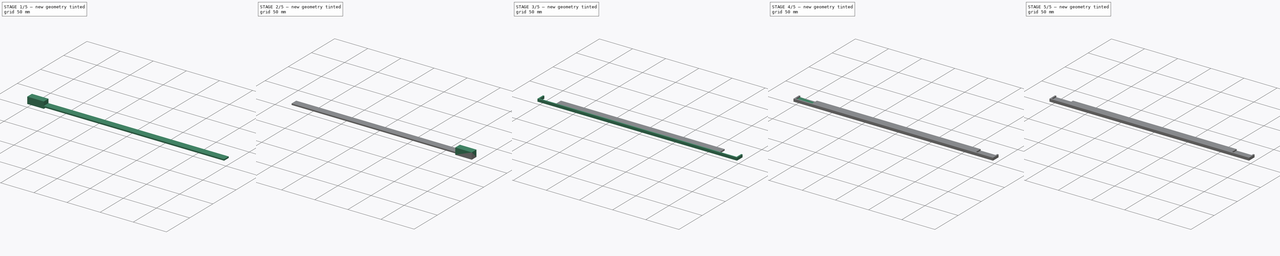
[diagram: build sequence overview — one tinted view per stage of 5, left to right]
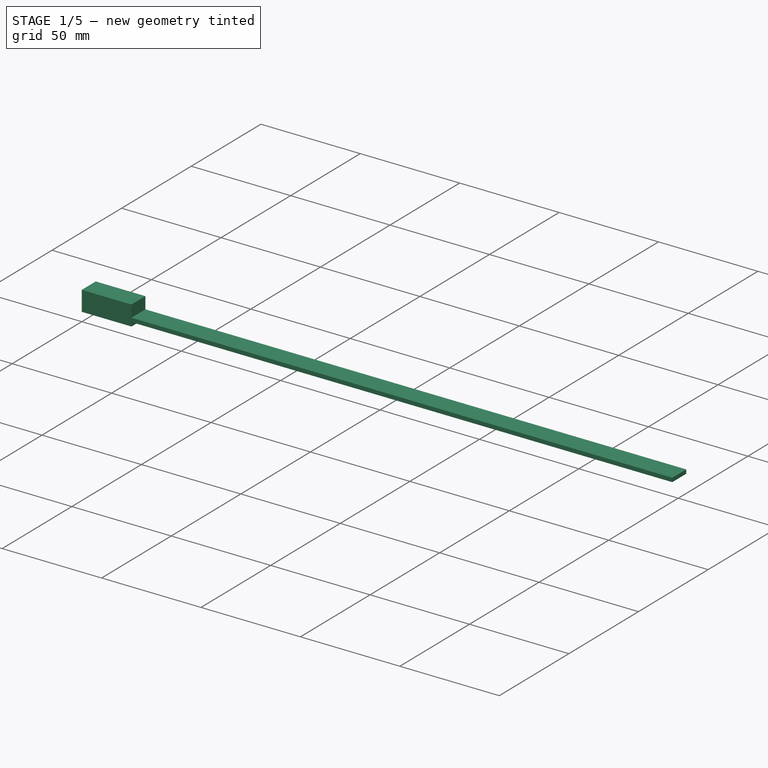
[diagram: stage 1 of 5 — iso view after this stage's code; geometry added in this stage tinted green]
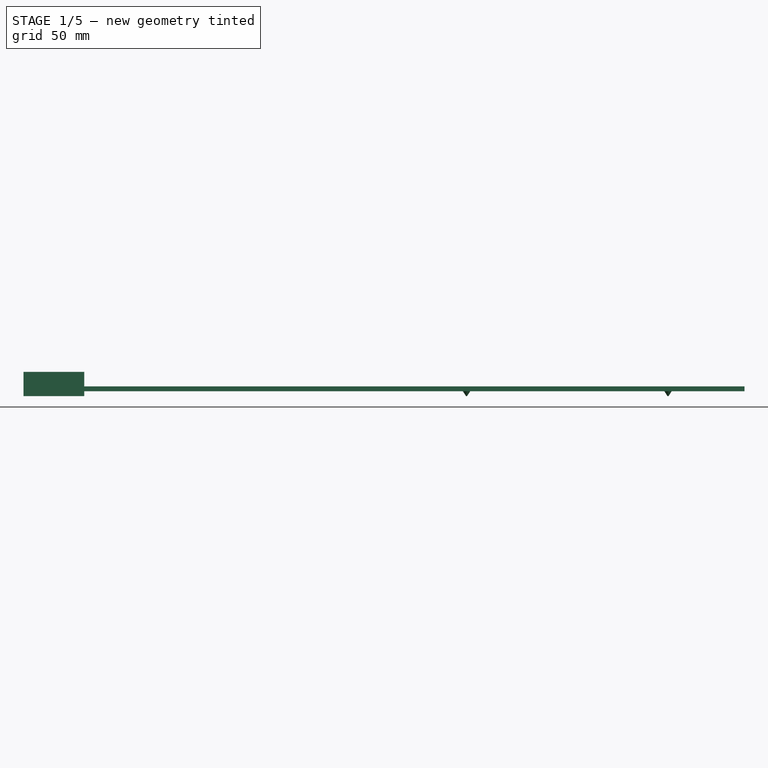
[diagram: stage 1 of 5 — front view after this stage's code; geometry added in this stage tinted green]
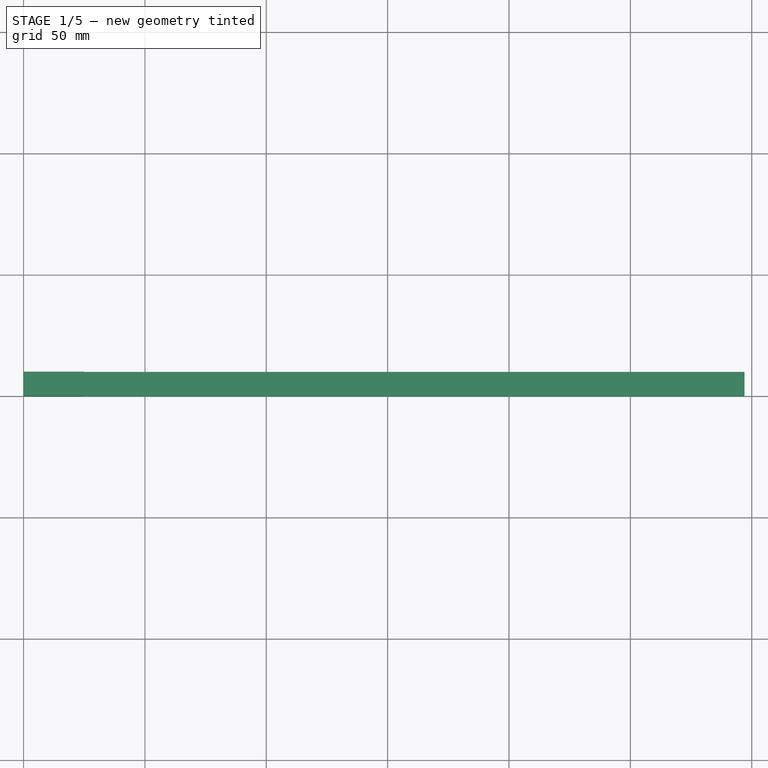
[diagram: stage 1 of 5 — top view after this stage's code; geometry added in this stage tinted green]
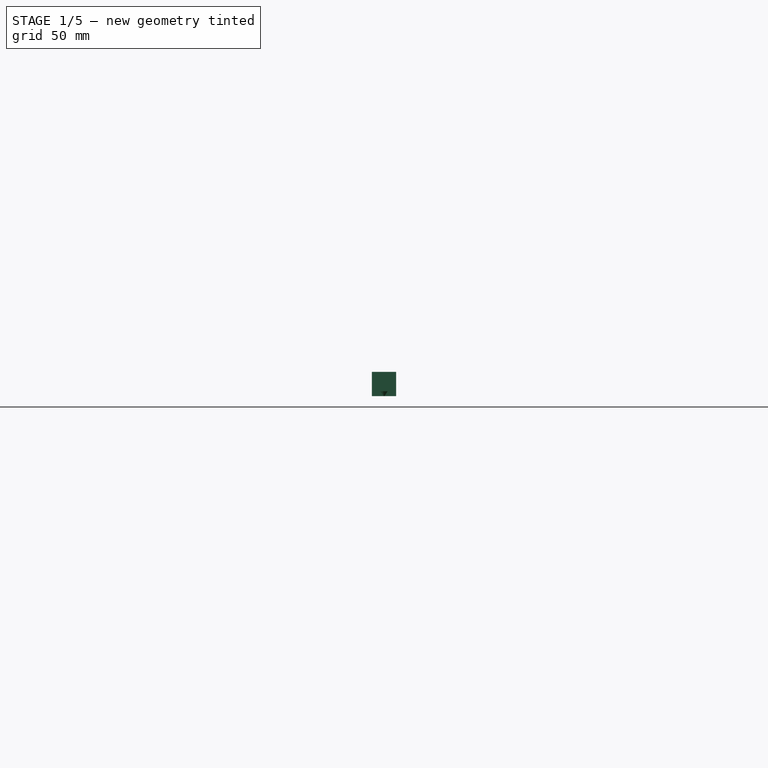
[diagram: stage 1 of 5 — right view after this stage's code; geometry added in this stage tinted green]
FCSTD DOCUMENT  (FreeCAD 0.18R4 (GitTag))
Label: template_vincha
License: CreativeCommons Attribution-ShareAlike
LicenseURL: http://creativecommons.org/licenses/by-sa/4.0/
objects: Part::Cone×8, Part::Cut×7, Part::Box×6, Part::MultiFuse×5, Part::FeaturePython×3, Sketcher::SketchObject×1, Part::Extrusion×1, App::DocumentObjectGroup×1
note: 31 computed .brp shape members not serialized (recipe doc carries the construction recipe); baked Part::Feature solids carry a one-line shape summary decoded from their .brp

FEATURE [Part::Cone] Cone006
  Angle = 360
  AttacherType = Attacher::AttachEngine3D
  Height = 2
  Placement = pos=(182.5,5,0) rot=(0,0,1;0rad)
  Radius1 = 0.2
  Radius2 = 1.5
FEATURE [Part::Cone] Cone007
  Angle = 360
  AttacherType = Attacher::AttachEngine3D
  Height = 2
  Placement = pos=(265.5,5,0) rot=(0,0,1;0rad)
  Radius1 = 0.2
  Radius2 = 1.5
FEATURE [Part::Box] Box001  label="Cube001"
  AttacherType = Attacher::AttachEngine3D
  Height = 2
  Length = 297
  Placement = pos=(0,0,2) rot=(0,0,1;0rad)
  Width = 10
FEATURE [Part::MultiFuse] Fusion
  Shapes = -> [Box001,Cone007]
FEATURE [Part::MultiFuse] Fusion001
  Shapes = -> [Fusion,Cone006]
FEATURE [App::DocumentObjectGroup] GrExplode_Slice  label="Exploded Slice"
  Group = -> [Slice_child0,Slice_child1]
FEATURE [Part::Box] Box004  label="Cube004"
  AttacherType = Attacher::AttachEngine3D
  Height = 10
  Length = 25
  Width = 10
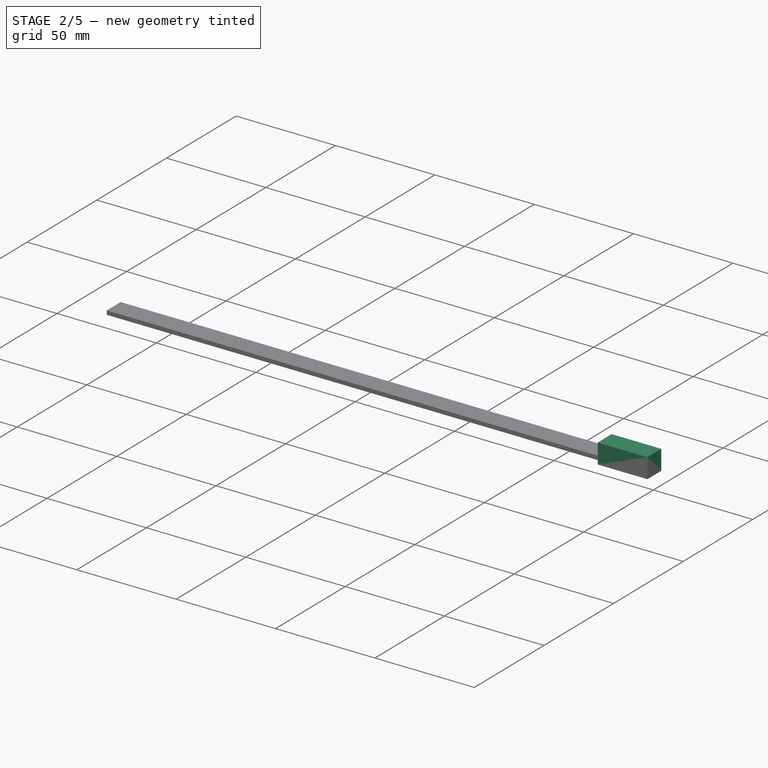
[diagram: stage 2 of 5 — iso view after this stage's code; geometry added in this stage tinted green]
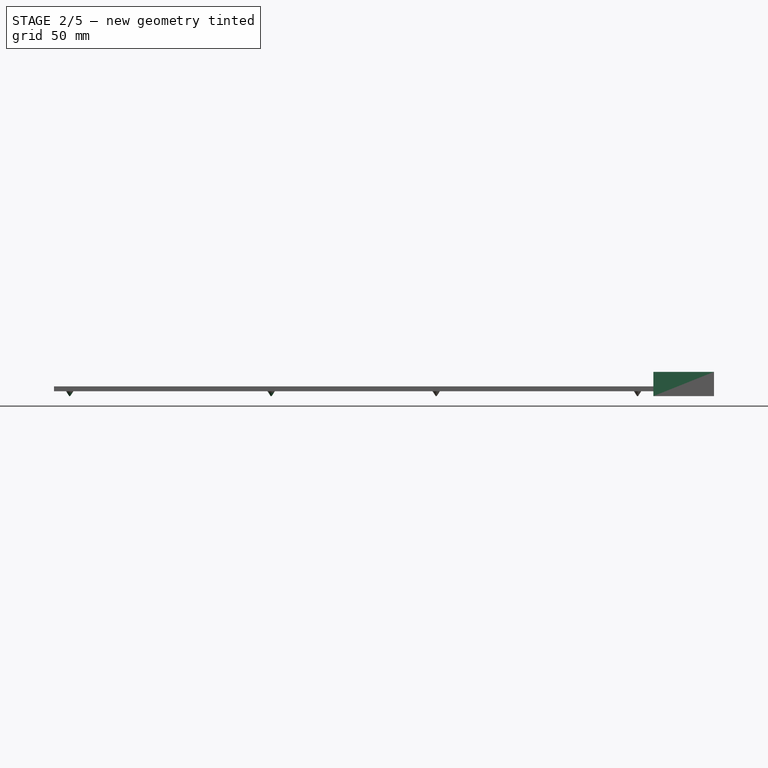
[diagram: stage 2 of 5 — front view after this stage's code; geometry added in this stage tinted green]
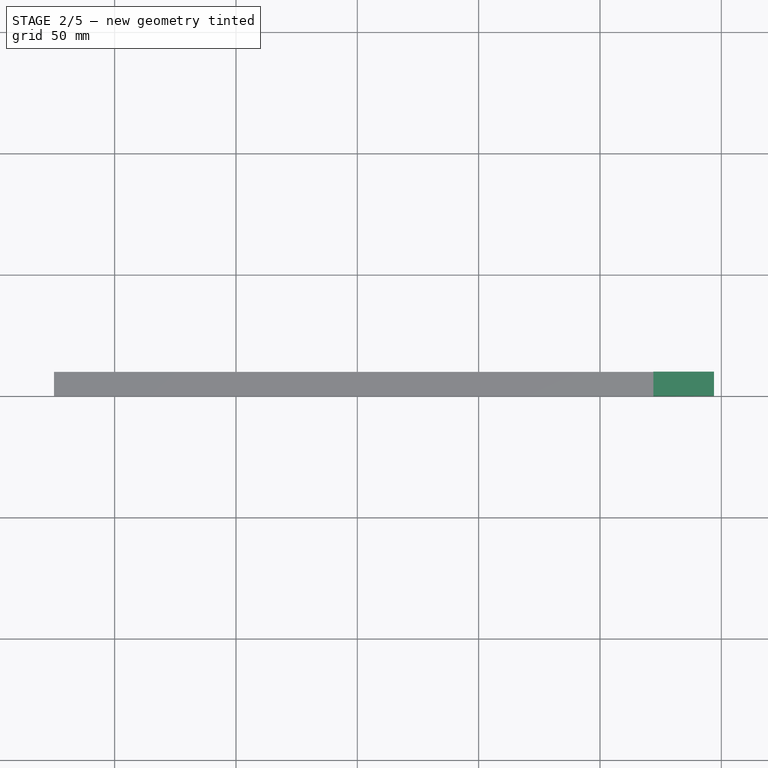
[diagram: stage 2 of 5 — top view after this stage's code; geometry added in this stage tinted green]
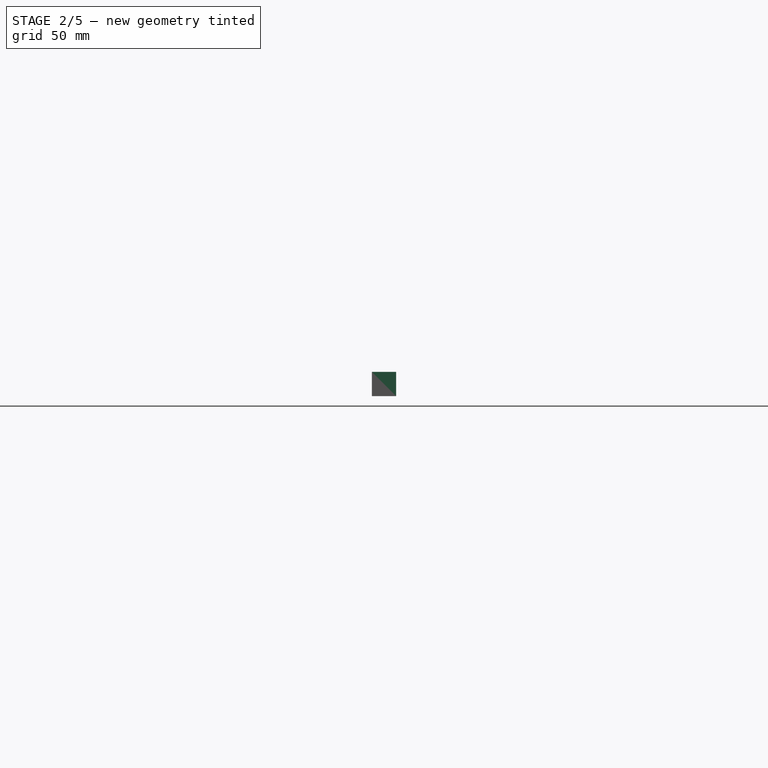
[diagram: stage 2 of 5 — right view after this stage's code; geometry added in this stage tinted green]
FEATURE [Part::Cone] Cone004
  Angle = 360
  AttacherType = Attacher::AttachEngine3D
  Height = 2
  Placement = pos=(31.5,5,0) rot=(0,0,1;0rad)
  Radius1 = 0.2
  Radius2 = 1.5
FEATURE [Part::Cone] Cone005
  Angle = 360
  AttacherType = Attacher::AttachEngine3D
  Height = 2
  Placement = pos=(114.5,5,0) rot=(0,0,1;0rad)
  Radius1 = 0.2
  Radius2 = 1.5
FEATURE [Part::MultiFuse] Fusion002
  Shapes = -> [Fusion001,Cone005]
FEATURE [Part::MultiFuse] Fusion003  label="cortador_largo"
  Shapes = -> [Fusion002,Cone004]
FEATURE [Part::Box] Box005  label="Cube005"
  AttacherType = Attacher::AttachEngine3D
  Height = 10
  Length = 25
  Placement = pos=(272,0,0) rot=(0,0,1;0rad)
  Width = 10
FEATURE [Part::Cut] Cut005
  Base = -> Fusion003
  Tool = -> Box004
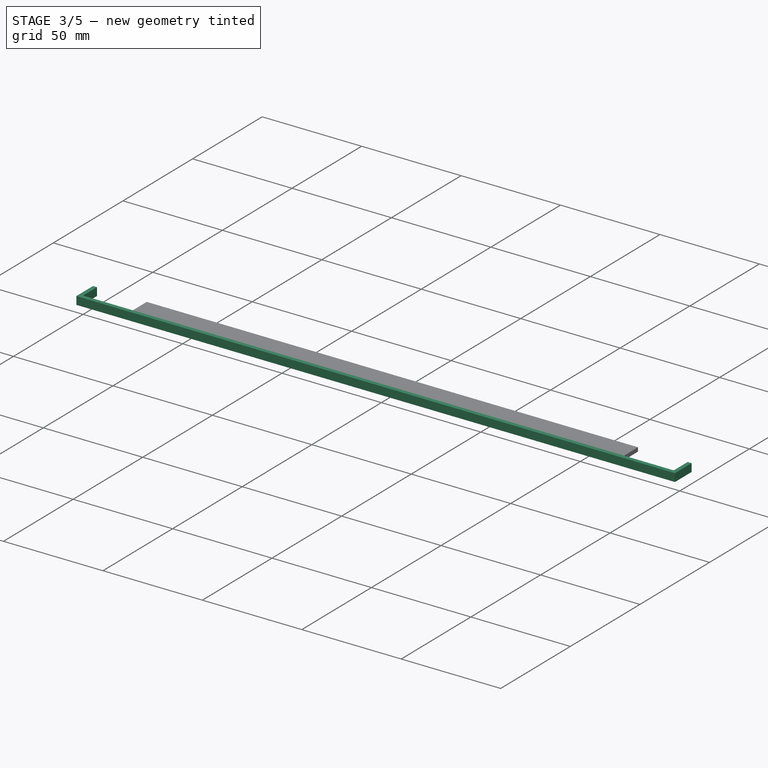
[diagram: stage 3 of 5 — iso view after this stage's code; geometry added in this stage tinted green]
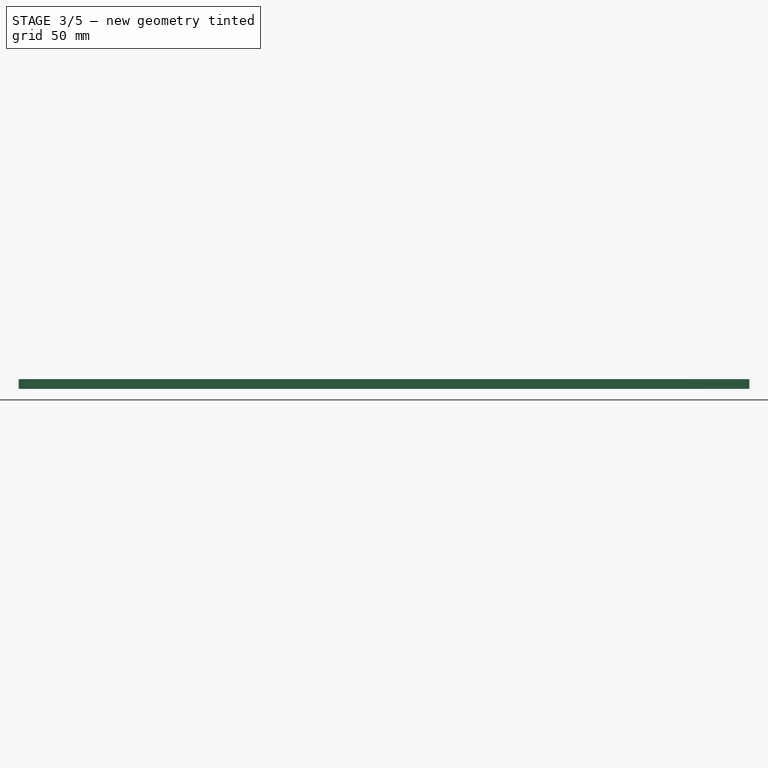
[diagram: stage 3 of 5 — front view after this stage's code; geometry added in this stage tinted green]
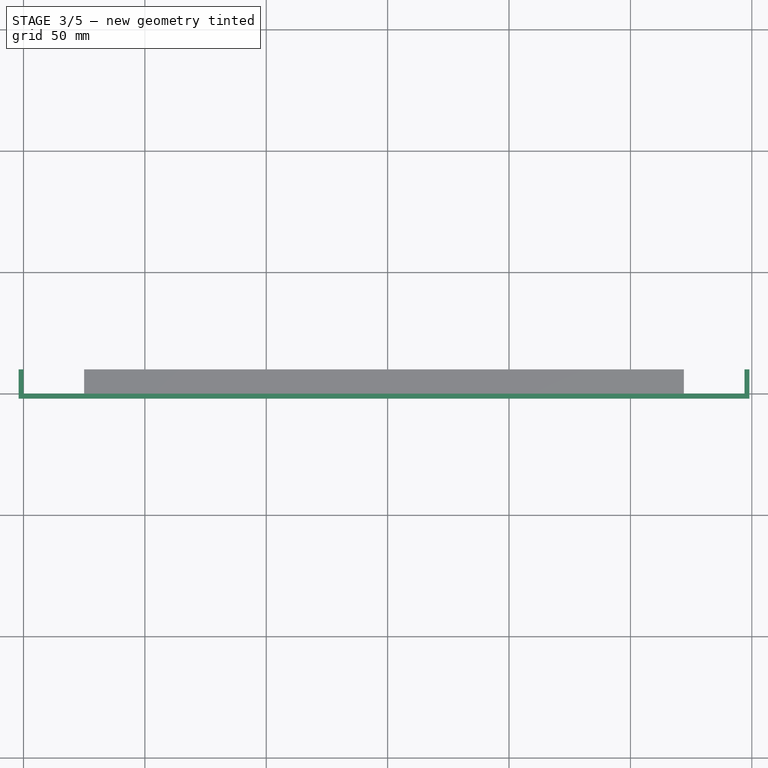
[diagram: stage 3 of 5 — top view after this stage's code; geometry added in this stage tinted green]
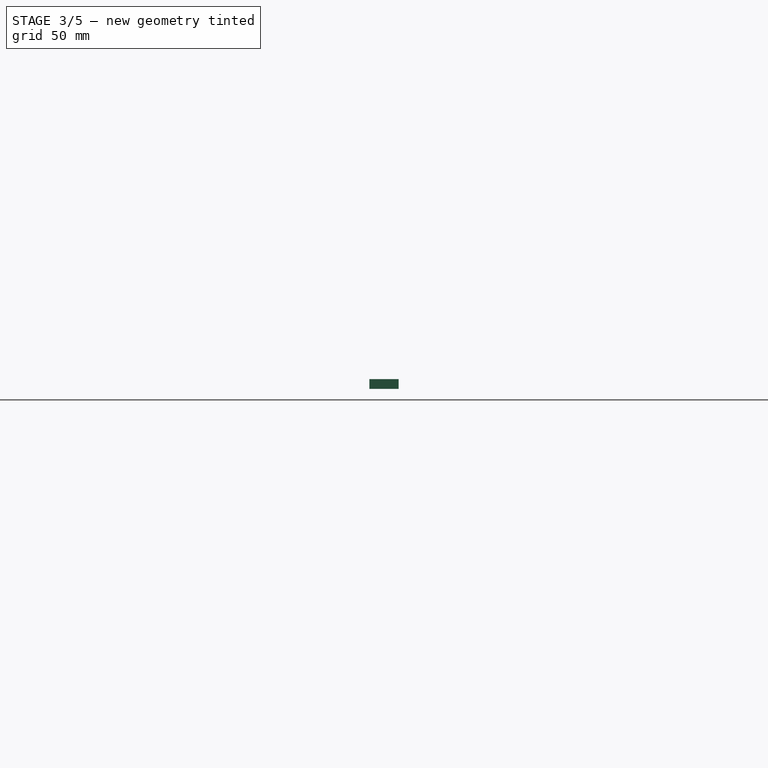
[diagram: stage 3 of 5 — right view after this stage's code; geometry added in this stage tinted green]
FEATURE [Part::Cone] Cone
  Angle = 360
  AttacherType = Attacher::AttachEngine3D
  Height = 2
  Placement = pos=(31.5,5,0) rot=(0,0,1;0rad)
  Radius1 = 0.2
  Radius2 = 1.5
FEATURE [Part::Box] Box002  label="Cube002"
  AttacherType = Attacher::AttachEngine3D
  Height = 4
  Length = 301
  Placement = pos=(-2,-2,0) rot=(0,0,1;0rad)
  Width = 12
FEATURE [Part::Box] Box003  label="Cube003"
  AttacherType = Attacher::AttachEngine3D
  Height = 4
  Length = 297
  Width = 10
FEATURE [Part::Cut] Cut004
  Base = -> Box002
  Tool = -> Box003
FEATURE [Part::Cut] Cut006  label="cortador"
  Base = -> Cut005
  Tool = -> Box005
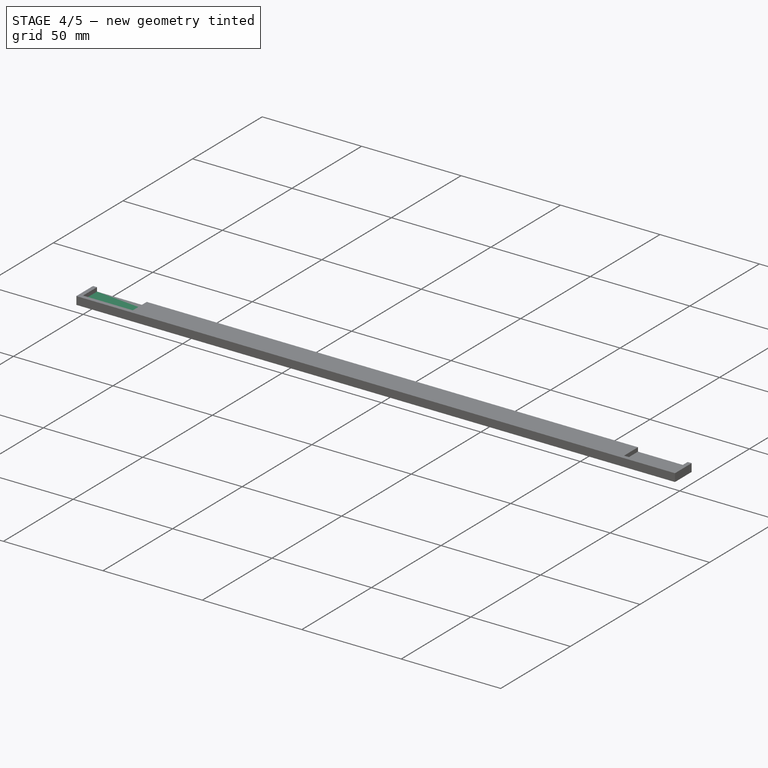
[diagram: stage 4 of 5 — iso view after this stage's code; geometry added in this stage tinted green]
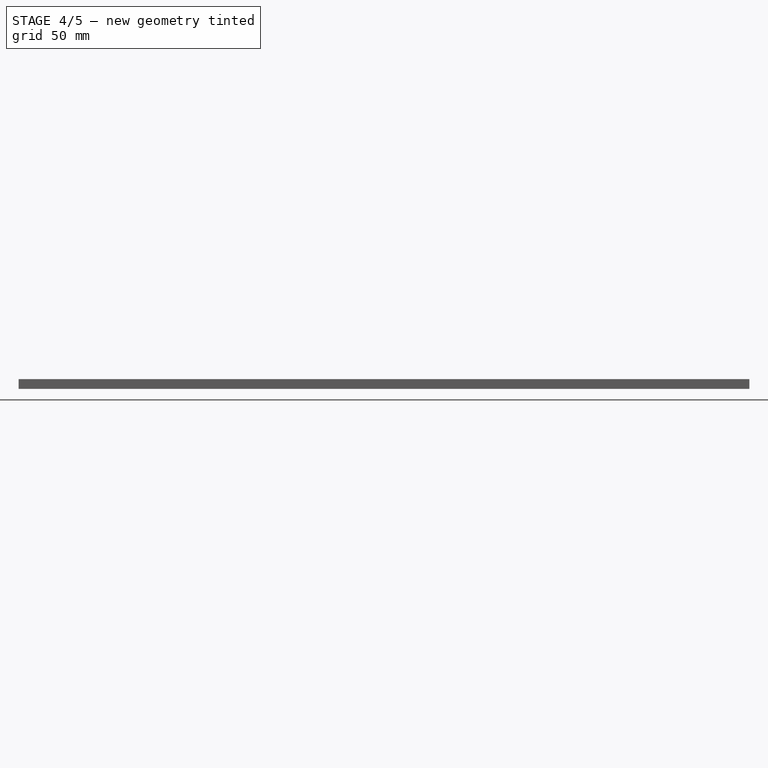
[diagram: stage 4 of 5 — front view after this stage's code; geometry added in this stage tinted green]
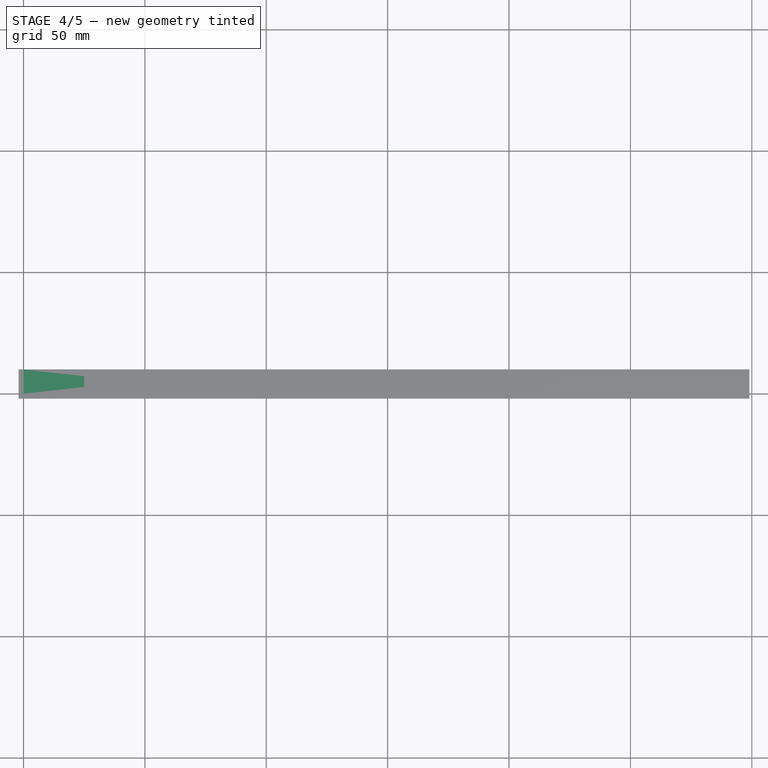
[diagram: stage 4 of 5 — top view after this stage's code; geometry added in this stage tinted green]
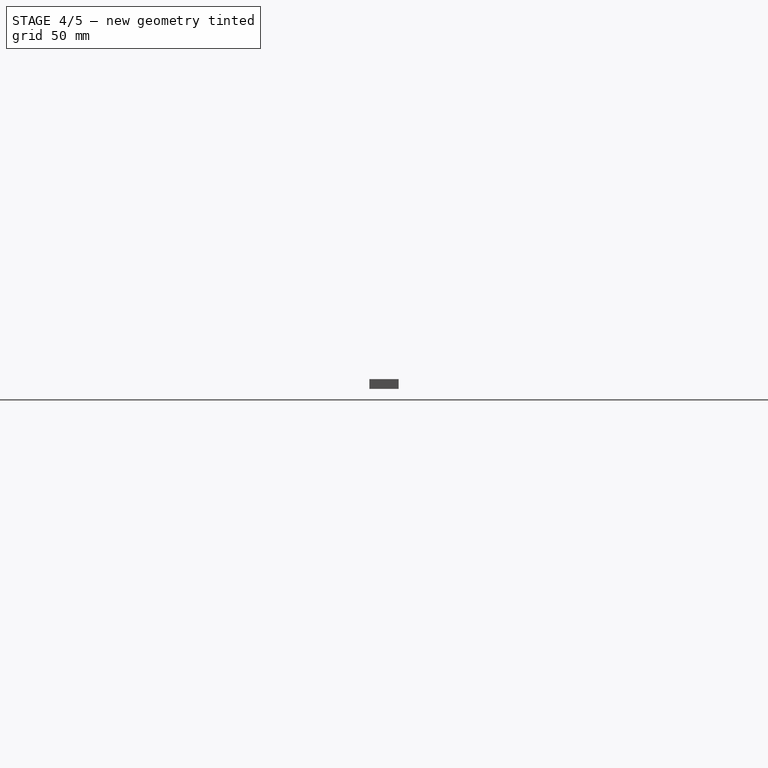
[diagram: stage 4 of 5 — right view after this stage's code; geometry added in this stage tinted green]
FEATURE [Part::Box] Box  label="Cube"
  AttacherType = Attacher::AttachEngine3D
  Height = 2
  Length = 297
  Width = 10
FEATURE [Part::Cone] Cone001
  Angle = 360
  AttacherType = Attacher::AttachEngine3D
  Height = 2
  Placement = pos=(114.5,5,0) rot=(0,0,1;0rad)
  Radius1 = 0.2
  Radius2 = 1.5
FEATURE [Part::Cone] Cone002
  Angle = 360
  AttacherType = Attacher::AttachEngine3D
  Height = 2
  Placement = pos=(182.5,5,0) rot=(0,0,1;0rad)
  Radius1 = 0.2
  Radius2 = 1.5
FEATURE [Part::Cut] Cut
  Base = -> Box
  Tool = -> Cone
FEATURE [Part::Cut] Cut001
  Base = -> Cut
  Tool = -> Cone001
FEATURE [Part::Cut] Cut002
  Base = -> Cut001
  Tool = -> Cone002
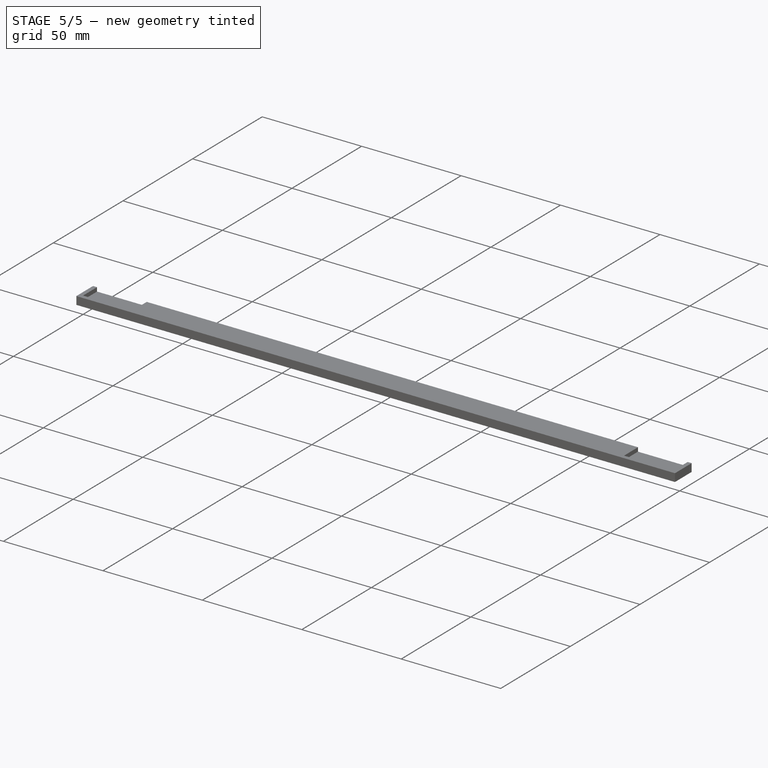
[diagram: stage 5 of 5 — iso view after this stage's code; geometry added in this stage tinted green]
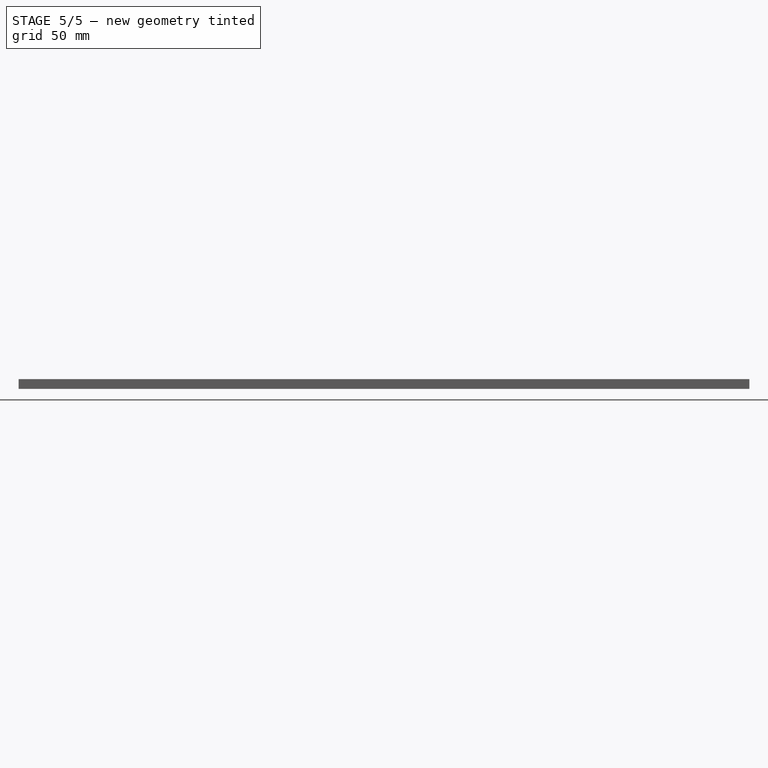
[diagram: stage 5 of 5 — front view after this stage's code; geometry added in this stage tinted green]
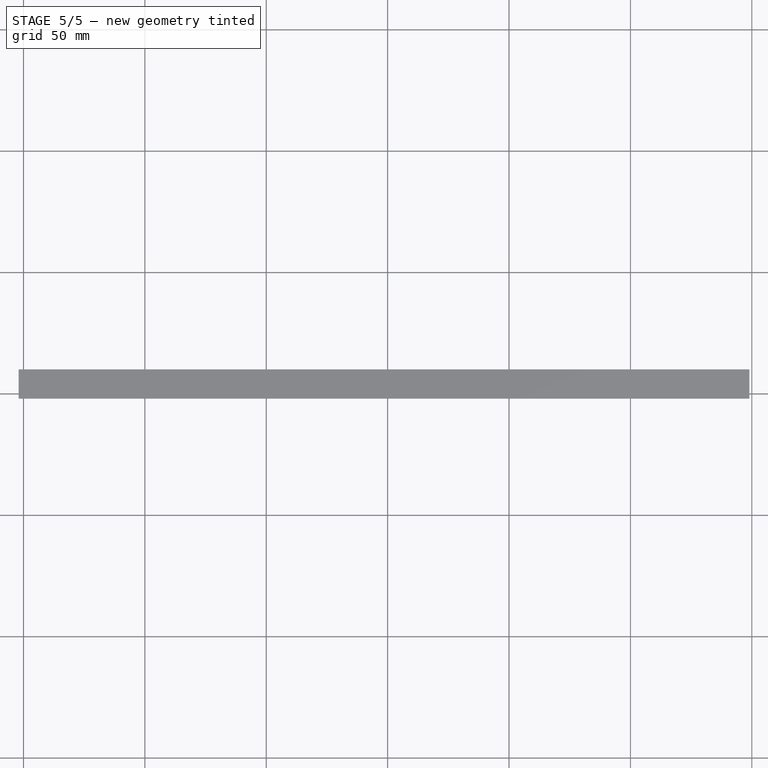
[diagram: stage 5 of 5 — top view after this stage's code; geometry added in this stage tinted green]
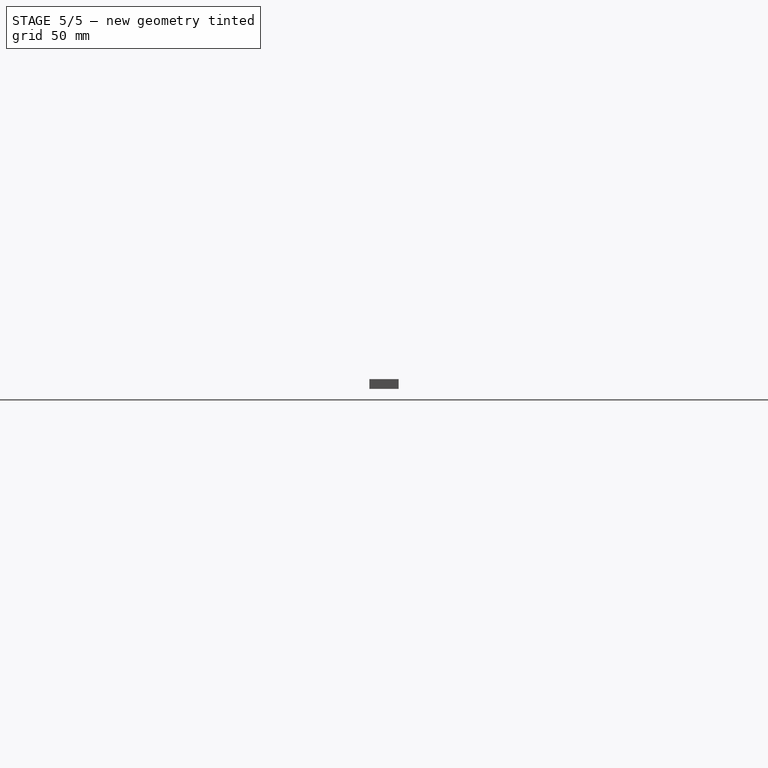
[diagram: stage 5 of 5 — right view after this stage's code; geometry added in this stage tinted green]
FEATURE [Part::Cone] Cone003
  Angle = 360
  AttacherType = Attacher::AttachEngine3D
  Height = 2
  Placement = pos=(265.5,5,0) rot=(0,0,1;0rad)
  Radius1 = 0.2
  Radius2 = 1.5
FEATURE [Part::Cut] Cut003  label="base1"
  Base = -> Cut002
  Tool = -> Cone003
FEATURE [Part::MultiFuse] Fusion004  label="base"
  Shapes = -> [Cut003,Cut004]
FEATURE [Sketcher::SketchObject] Sketch
  MapMode = 5
  Placement = pos=(0,0,2) rot=(0,0,1;0rad)
  Support = -> [Fusion004]
  sketch-geometry (3):
    g0: LineSegment StartX=157.419 StartY=11.8226 StartZ=0 EndX=158.5 EndY=7.5 EndZ=0
    g1: LineSegment StartX=158.5 StartY=7.5 StartZ=0 EndX=138.5 EndY=2.5 EndZ=0
    g2: LineSegment StartX=138.5 StartY=2.5 StartZ=0 EndX=140.869 EndY=-6.97583 EndZ=0
  constraints (8):
    c: Coincident(g0,g1)
    c: Coincident(g1,g2)
    c: DistanceY(g-1,g0) = 7.5
    c: DistanceY(g-1,g1) = 2.5
    c: Angle(g2,g1) = 1.5708
    c: Angle(g0,g1) = 1.5708
    c: DistanceX(g-1,g0) = 158.5
    c: DistanceX(g-1,g1) = 138.5
FEATURE [Part::Extrusion] Extrude
  Base = -> Sketch
  Dir = (0,0,1)
  DirMode = 2
  FaceMakerClass = Part::FaceMakerBullseye
  LengthFwd = 10
  LengthRev = 0
  Solid = false
  Symmetric = true
FEATURE [Part::FeaturePython] Slice  # WARN: FeaturePython — macro-defined, semantics opaque (R4)
  Base = -> Fusion004
  Mode = 1
  Tolerance = 0
  Tools = -> [Extrude]
FEATURE [Part::FeaturePython] Slice_child0  label="Slice.0"  # WARN: FeaturePython — macro-defined, semantics opaque (R4)
  Base = -> Slice
  FilterType = 1
  Invert = false
  OverrideMaxVal = 0
  WindowFrom = 80
  WindowTo = 100
  items = 0
FEATURE [Part::FeaturePython] Slice_child1  label="Slice.1"  # WARN: FeaturePython — macro-defined, semantics opaque (R4)
  Base = -> Slice
  FilterType = 1
  Invert = false
  OverrideMaxVal = 0
  WindowFrom = 80
  WindowTo = 100
  items = 1
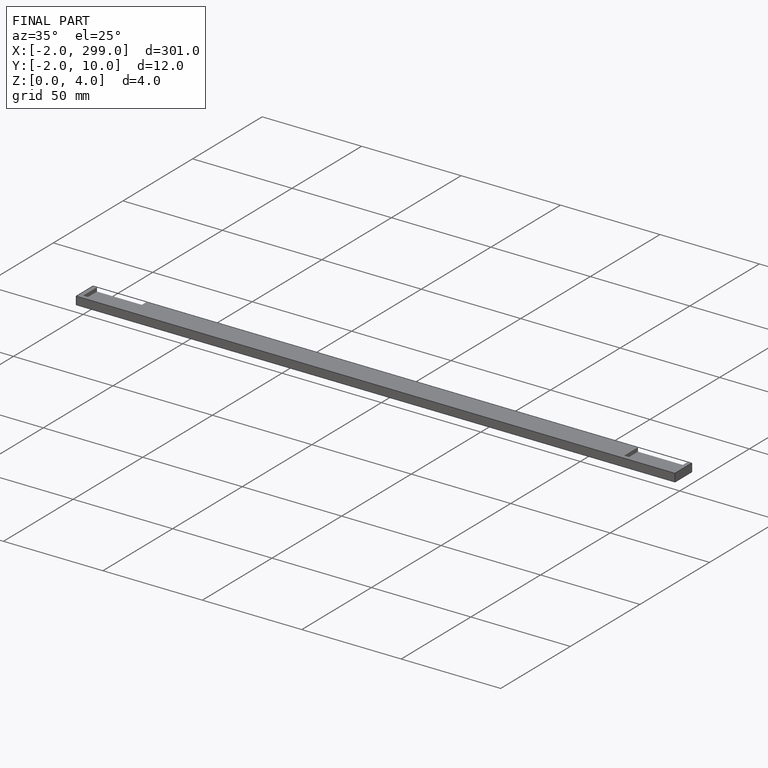
[diagram: finished part — iso view with bounding-box wireframe]
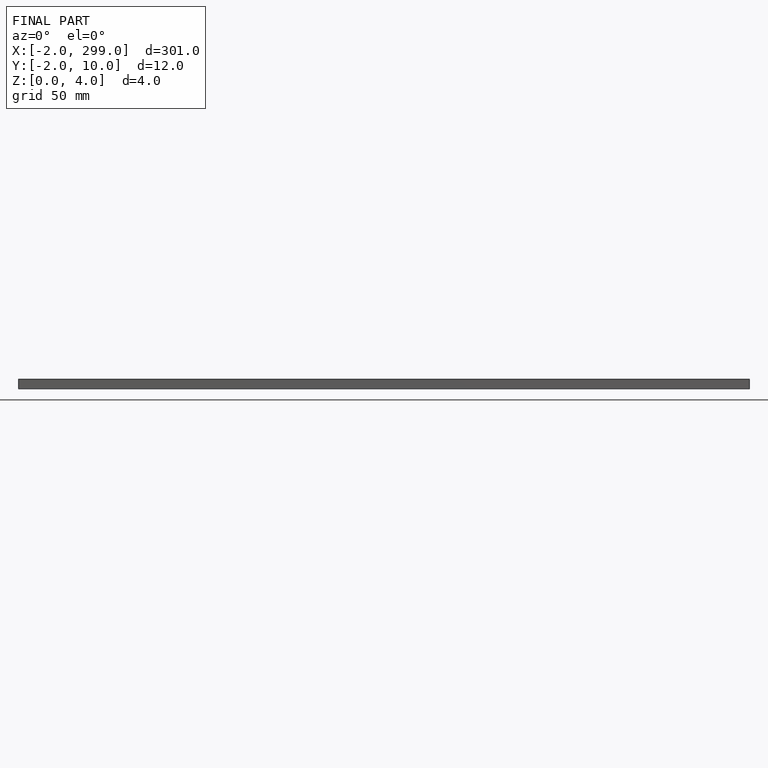
[diagram: finished part — front view with bounding-box wireframe]
